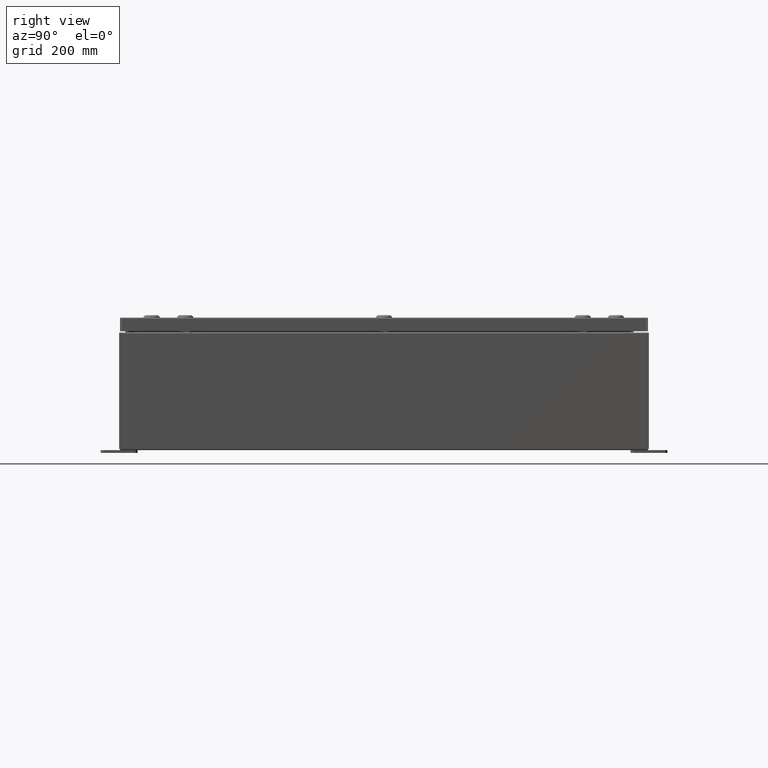
[diagram: clean part render]
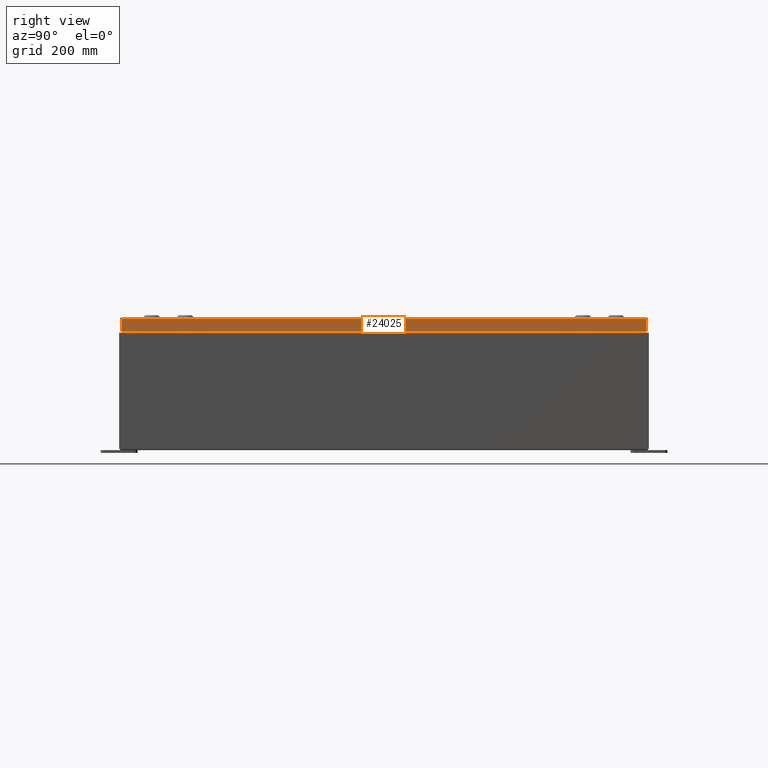
[diagram: same view with one face highlighted and labeled with its STEP entity id]
A machine part, right view. The second image highlights one B-rep face of the part: STEP entity #24025.
In plain terms, the highlighted planar face has unit normal (1, 0, 0).
Its self-contained STEP definition (entity closure, byte-faithful):
#687 = DIRECTION ( 'NONE',  ( 0.0000000000000000000, -1.000000000000000000, 0.0000000000000000000 ) ) ;
#3367 = LINE ( 'NONE', #5350, #30451 ) ;
#5350 = CARTESIAN_POINT ( 'NONE',  ( 14.93749999999999800, 17.84865786437626800, 1.627253479934829100E-013 ) ) ;
#6851 = ORIENTED_EDGE ( 'NONE', *, *, #61903, .T. ) ;
#11855 = CARTESIAN_POINT ( 'NONE',  ( 14.93749999999999800, -17.84865786437627100, -0.07469999999999980800 ) ) ;
#12945 = VERTEX_POINT ( 'NONE', #38104 ) ;
#15286 = CARTESIAN_POINT ( 'NONE',  ( 14.93750000000000000, -17.93750000000000000, -0.9376999999999997600 ) ) ;
#15372 = VECTOR ( 'NONE', #25484, 39.37007874015748100 ) ;
#15507 = ORIENTED_EDGE ( 'NONE', *, *, #18501, .F. ) ;
#17521 = AXIS2_PLACEMENT_3D ( 'NONE', #55289, #60628, #30133 ) ;
#18501 = EDGE_CURVE ( 'NONE', #36836, #12945, #54339, .T. ) ;
#20153 = CARTESIAN_POINT ( 'NONE',  ( 14.93749999999999800, -17.84865786437627100, -0.08770000000000008300 ) ) ;
#24025 = ADVANCED_FACE ( 'NONE', ( #55571 ), #55510, .T. ) ;
#25484 = DIRECTION ( 'NONE',  ( 0.0000000000000000000, -1.000000000000000000, 0.0000000000000000000 ) ) ;
#25604 = LINE ( 'NONE', #31139, #54260 ) ;
#25969 = EDGE_CURVE ( 'NONE', #12945, #44719, #45286, .T. ) ;
#27297 = CARTESIAN_POINT ( 'NONE',  ( 14.93750000000000000, 17.84865786437627500, -0.9376999999999997600 ) ) ;
#30133 = DIRECTION ( 'NONE',  ( 2.532419924601866100E-015, 0.0000000000000000000, -1.000000000000000000 ) ) ;
#30451 = VECTOR ( 'NONE', #35823, 39.37007874015748100 ) ;
#31139 = CARTESIAN_POINT ( 'NONE',  ( 14.93749999999999800, 0.0000000000000000000, -0.08770000000000008300 ) ) ;
#31992 = ORIENTED_EDGE ( 'NONE', *, *, #25969, .F. ) ;
#35823 = DIRECTION ( 'NONE',  ( -2.532419924601866100E-015, -6.982962677686265900E-015, 1.000000000000000000 ) ) ;
#36836 = VERTEX_POINT ( 'NONE', #27297 ) ;
#38104 = CARTESIAN_POINT ( 'NONE',  ( 14.93750000000000000, -17.84865786437626400, -0.9376999999999997600 ) ) ;
#38985 = EDGE_LOOP ( 'NONE', ( #31992, #15507, #45888, #6851 ) ) ;
#44719 = VERTEX_POINT ( 'NONE', #20153 ) ;
#45286 = LINE ( 'NONE', #11855, #58800 ) ;
#45888 = ORIENTED_EDGE ( 'NONE', *, *, #60869, .T. ) ;
#46633 = CARTESIAN_POINT ( 'NONE',  ( 14.93749999999999800, 17.84865786437626800, -0.08770000000000008300 ) ) ;
#47461 = DIRECTION ( 'NONE',  ( -2.532419924601866100E-015, -6.982962677686265900E-015, 1.000000000000000000 ) ) ;
#54260 = VECTOR ( 'NONE', #687, 39.37007874015748100 ) ;
#54339 = LINE ( 'NONE', #15286, #15372 ) ;
#55289 = CARTESIAN_POINT ( 'NONE',  ( 14.93749999999999800, 0.0000000000000000000, 3.808883627975194400E-014 ) ) ;
#55510 = PLANE ( 'NONE',  #17521 ) ;
#55571 = FACE_OUTER_BOUND ( 'NONE', #38985, .T. ) ;
#58800 = VECTOR ( 'NONE', #47461, 39.37007874015748100 ) ;
#60628 = DIRECTION ( 'NONE',  ( 1.000000000000000000, 0.0000000000000000000, 2.532419924601866100E-015 ) ) ;
#60869 = EDGE_CURVE ( 'NONE', #36836, #62451, #3367, .T. ) ;
#61903 = EDGE_CURVE ( 'NONE', #62451, #44719, #25604, .T. ) ;
#62451 = VERTEX_POINT ( 'NONE', #46633 ) ;